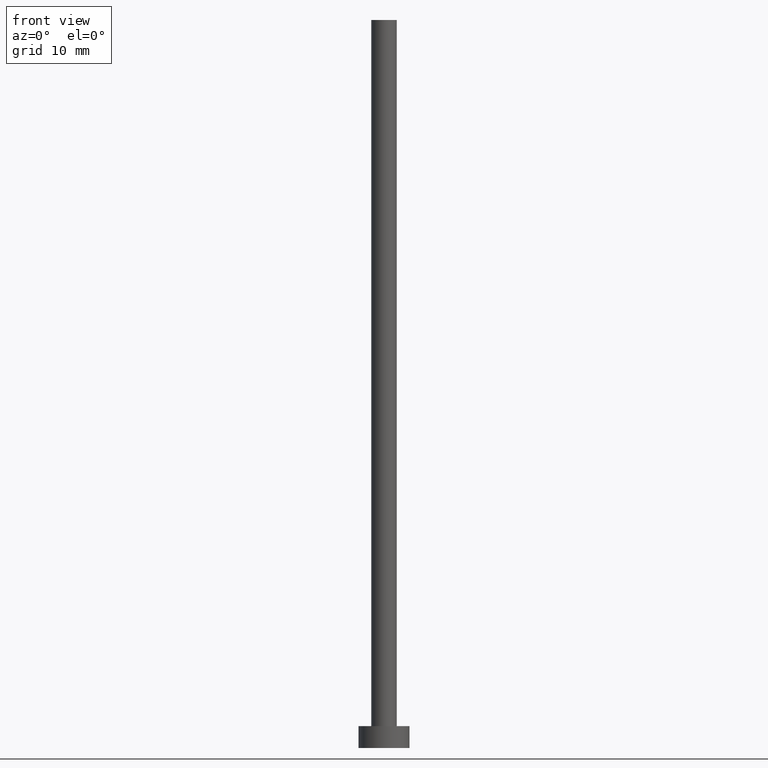
[diagram: clean part render]
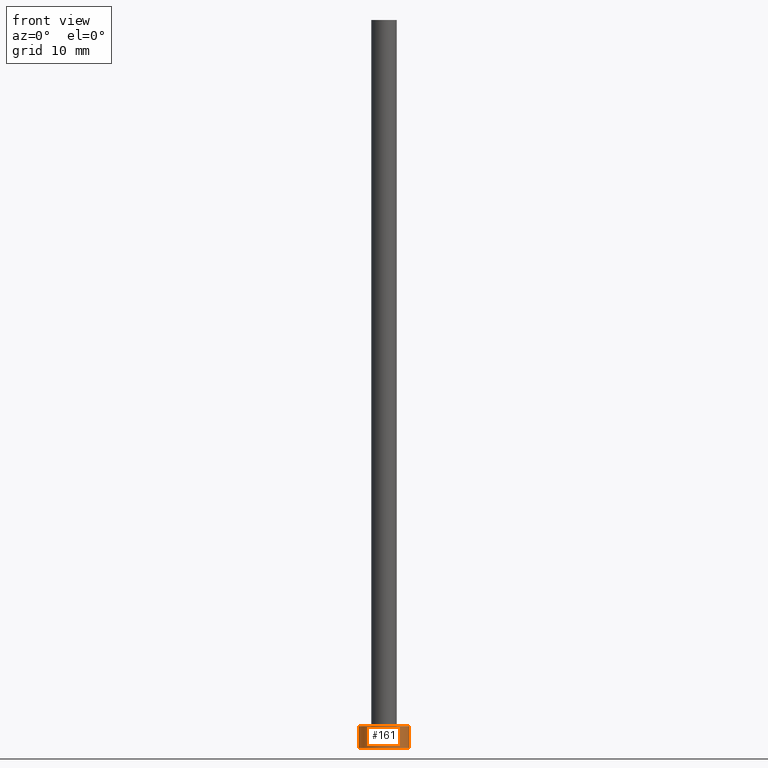
[diagram: same view with one face highlighted and labeled with its STEP entity id]
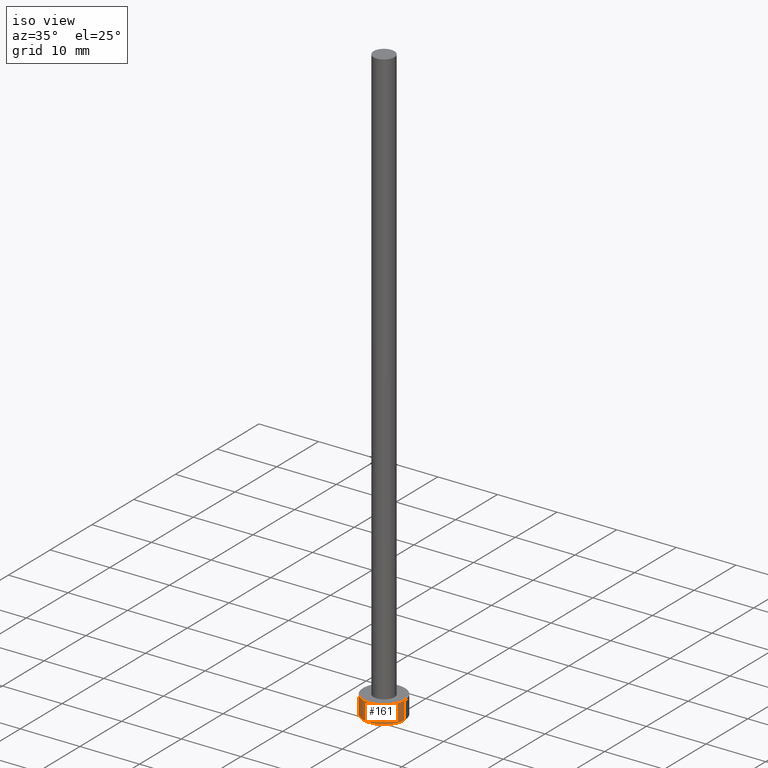
[diagram: same view with one face highlighted and labeled with its STEP entity id]
A machine part, front view. The second image highlights one B-rep face of the part: STEP entity #161.
A second angle (iso view) of the same face is appended — the face is thin or edge-on in the first view.
In plain terms, the highlighted cylindrical surface (edge-blend (fillet) strip) has radius 3.5 mm, axis along (-0, -0, -1).
Its self-contained STEP definition (entity closure, byte-faithful):
#1 = ORIENTED_EDGE ( 'NONE', *, *, #54, .F. ) ;
#6 = CIRCLE ( 'NONE', #126, 3.500000000000000444 ) ;
#10 = DIRECTION ( 'NONE',  ( -1.000000000000000000, 0.000000000000000000, 0.000000000000000000 ) ) ;
#25 = CIRCLE ( 'NONE', #97, 3.500000000000000444 ) ;
#27 = DIRECTION ( 'NONE',  ( 0.000000000000000000, 0.000000000000000000, 1.000000000000000000 ) ) ;
#28 = CARTESIAN_POINT ( 'NONE',  ( -3.500000000000000444, 0.000000000000000000, 3.000000000000000000 ) ) ;
#41 = CARTESIAN_POINT ( 'NONE',  ( 0.000000000000000000, 0.000000000000000000, 3.000000000000000000 ) ) ;
#42 = DIRECTION ( 'NONE',  ( 1.000000000000000000, 0.000000000000000000, 0.000000000000000000 ) ) ;
#44 = CARTESIAN_POINT ( 'NONE',  ( 3.500000000000000444, 4.286263797015737088E-16, 3.000000000000000000 ) ) ;
#45 = ORIENTED_EDGE ( 'NONE', *, *, #133, .F. ) ;
#54 = EDGE_CURVE ( 'NONE', #118, #121, #6, .T. ) ;
#62 = DIRECTION ( 'NONE',  ( 0.000000000000000000, 0.000000000000000000, 1.000000000000000000 ) ) ;
#68 = LINE ( 'NONE', #44, #72 ) ;
#70 = CARTESIAN_POINT ( 'NONE',  ( -3.500000000000000444, 0.000000000000000000, 0.000000000000000000 ) ) ;
#72 = VECTOR ( 'NONE', #167, 1000.000000000000000 ) ;
#77 = VERTEX_POINT ( 'NONE', #218 ) ;
#87 = AXIS2_PLACEMENT_3D ( 'NONE', #89, #241, #10 ) ;
#89 = CARTESIAN_POINT ( 'NONE',  ( 0.000000000000000000, 0.000000000000000000, 3.000000000000000000 ) ) ;
#90 = CYLINDRICAL_SURFACE ( 'NONE', #87, 3.500000000000000444 ) ;
#97 = AXIS2_PLACEMENT_3D ( 'NONE', #168, #27, #224 ) ;
#118 = VERTEX_POINT ( 'NONE', #255 ) ;
#121 = VERTEX_POINT ( 'NONE', #162 ) ;
#126 = AXIS2_PLACEMENT_3D ( 'NONE', #41, #62, #42 ) ;
#133 = EDGE_CURVE ( 'NONE', #121, #77, #68, .T. ) ;
#134 = EDGE_LOOP ( 'NONE', ( #45, #1, #247, #236 ) ) ;
#145 = FACE_OUTER_BOUND ( 'NONE', #134, .T. ) ;
#150 = EDGE_CURVE ( 'NONE', #190, #77, #25, .T. ) ;
#152 = DIRECTION ( 'NONE',  ( -0.000000000000000000, -0.000000000000000000, -1.000000000000000000 ) ) ;
#161 = ADVANCED_FACE ( 'NONE', ( #145 ), #90, .T. ) ;
#162 = CARTESIAN_POINT ( 'NONE',  ( 3.500000000000000444, 4.286263797015737088E-16, 3.000000000000000000 ) ) ;
#167 = DIRECTION ( 'NONE',  ( -0.000000000000000000, -0.000000000000000000, -1.000000000000000000 ) ) ;
#168 = CARTESIAN_POINT ( 'NONE',  ( 0.000000000000000000, 0.000000000000000000, 0.000000000000000000 ) ) ;
#190 = VERTEX_POINT ( 'NONE', #70 ) ;
#199 = LINE ( 'NONE', #28, #226 ) ;
#217 = EDGE_CURVE ( 'NONE', #118, #190, #199, .T. ) ;
#218 = CARTESIAN_POINT ( 'NONE',  ( 3.500000000000000444, 4.286263797015737088E-16, 0.000000000000000000 ) ) ;
#224 = DIRECTION ( 'NONE',  ( 1.000000000000000000, 0.000000000000000000, 0.000000000000000000 ) ) ;
#226 = VECTOR ( 'NONE', #152, 1000.000000000000000 ) ;
#236 = ORIENTED_EDGE ( 'NONE', *, *, #150, .T. ) ;
#241 = DIRECTION ( 'NONE',  ( -0.000000000000000000, -0.000000000000000000, -1.000000000000000000 ) ) ;
#247 = ORIENTED_EDGE ( 'NONE', *, *, #217, .T. ) ;
#255 = CARTESIAN_POINT ( 'NONE',  ( -3.500000000000000444, 0.000000000000000000, 3.000000000000000000 ) ) ;